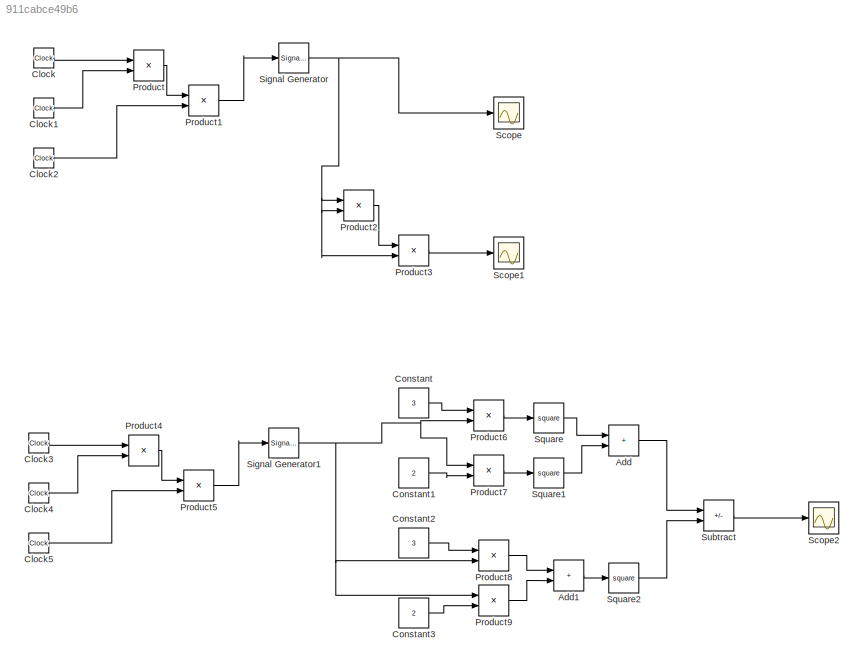
MODEL slx_911cabce49b6
KIND model
CONFIG AbsTol = auto
CONFIG EnableMultiTasking = off
CONFIG FixedStep = auto
CONFIG MaxStep = auto
CONFIG MinStep = auto
CONFIG RelTol = 1e-3
CONFIG SampleTimeConstraint = Unconstrained
CONFIG SolverName = VariableStepAuto
CONFIG StartTime = 0.0
CONFIG StopTime = 10.0
BLOCK [Sum] Add
  IconShape = rectangular
BLOCK [Sum] Add1
  IconShape = rectangular
BLOCK [Clock] Clock
  Decimation = 1
  DisplayTime = on
BLOCK [Clock] Clock1
  Decimation = 1
  DisplayTime = on
BLOCK [Clock] Clock2
  Decimation = 1
  DisplayTime = on
BLOCK [Clock] Clock3
  Decimation = 1
  DisplayTime = on
BLOCK [Clock] Clock4
  Decimation = 1
  DisplayTime = on
BLOCK [Clock] Clock5
  Decimation = 1
  DisplayTime = on
BLOCK [Constant] Constant
  Value = 3
BLOCK [Constant] Constant1
  Value = 2
BLOCK [Constant] Constant2
  Value = 3
BLOCK [Constant] Constant3
  Value = 2
BLOCK [Product] Product
BLOCK [Product] Product1
BLOCK [Product] Product2
BLOCK [Product] Product3
BLOCK [Product] Product4
BLOCK [Product] Product5
BLOCK [Product] Product6
BLOCK [Product] Product7
BLOCK [Product] Product8
BLOCK [Product] Product9
BLOCK [Scope] Scope
  Floating = off
  NumInputPorts = 1
  ScopeSpecificationString = Simulink.scopes.TimeScopeBlockCfg('CurrentConfiguration', extmgr.ConfigurationSet(extmgr.Configuration('Core','General UI',true),extmgr.Configuration('Core','Source UI',true),extmgr.Configuration('Sources','WiredSimulink',true),extmgr.Configuration('Visuals','Time Domain',true,'SerializedDisplays',{struct('MinYLimReal','-1.08253','MaxYLimReal','1.08253','YLabelReal','','MinYLimMag','0.00000','MaxY...<+1376ch>
BLOCK [Scope] Scope1
  Floating = off
  NumInputPorts = 1
  ScopeSpecificationString = Simulink.scopes.TimeScopeBlockCfg('CurrentConfiguration', extmgr.ConfigurationSet(extmgr.Configuration('Core','General UI',true),extmgr.Configuration('Core','Source UI',true),extmgr.Configuration('Sources','WiredSimulink',true,'DataLoggingVariableName','ScopeData1'),extmgr.Configuration('Visuals','Time Domain',true),extmgr.Configuration('Tools','Plot Navigation',true),extmgr.Configuration('Tools',...<+40ch>
BLOCK [Scope] Scope2
  Floating = off
  NumInputPorts = 1
  ScopeSpecificationString = Simulink.scopes.TimeScopeBlockCfg('CurrentConfiguration', extmgr.ConfigurationSet(extmgr.Configuration('Core','General UI',true),extmgr.Configuration('Core','Source UI',true),extmgr.Configuration('Sources','WiredSimulink',true,'DataLoggingVariableName','ScopeData2'),extmgr.Configuration('Visuals','Time Domain',true,'SerializedDisplays',{struct('MinYLimReal','-13.5','MaxYLimReal','1.5','YLabelReal'...<+1389ch>
BLOCK [SignalGenerator] Signal Generator
  Frequency = 10
  TimeSource = Use external signal
BLOCK [SignalGenerator] Signal Generator1
  Frequency = 10
  TimeSource = Use external signal
BLOCK [Math] Square
  Operator = square
BLOCK [Math] Square1
  Operator = square
BLOCK [Math] Square2
  Operator = square
BLOCK [Sum] Subtract
  IconShape = rectangular
  Inputs = +-
LINE Add1:1 -> Square2:1
LINE Add:1 -> Subtract:1
LINE Clock1:1 -> Product:2
LINE Clock2:1 -> Product1:2
LINE Clock3:1 -> Product4:1
LINE Clock4:1 -> Product4:2
LINE Clock5:1 -> Product5:2
LINE Clock:1 -> Product:1
LINE Constant1:1 -> Product7:2
LINE Constant2:1 -> Product8:1
LINE Constant3:1 -> Product9:2
LINE Constant:1 -> Product6:1
LINE Product1:1 -> Signal Generator:1
LINE Product2:1 -> Product3:1
LINE Product3:1 -> Scope1:1
LINE Product4:1 -> Product5:1
LINE Product5:1 -> Signal Generator1:1
LINE Product6:1 -> Square:1
LINE Product7:1 -> Square1:1
LINE Product8:1 -> Add1:1
LINE Product9:1 -> Add1:2
LINE Product:1 -> Product1:1
NET Signal Generator1:1 -> Product6:2, Product7:1, Product8:2, Product9:1
NET Signal Generator:1 -> Product2:1, Product2:2, Product3:2, Scope:1
LINE Square1:1 -> Add:2
LINE Square2:1 -> Subtract:2
LINE Square:1 -> Add:1
LINE Subtract:1 -> Scope2:1
note: NET lines group one-source signal fan-out (src -> all destinations, sorted); 1:1 wires keep LINE
